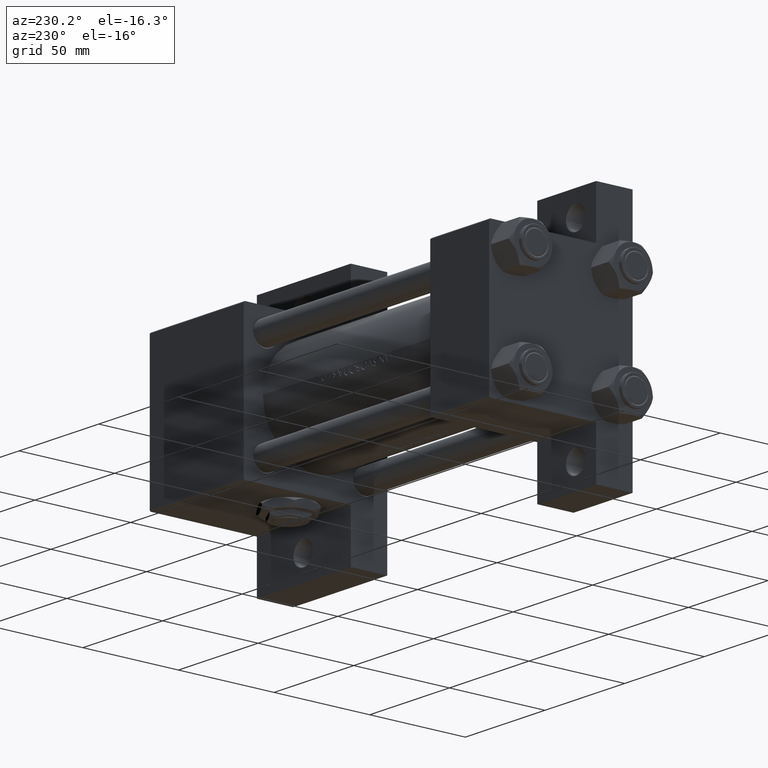
[diagram: clean part render]
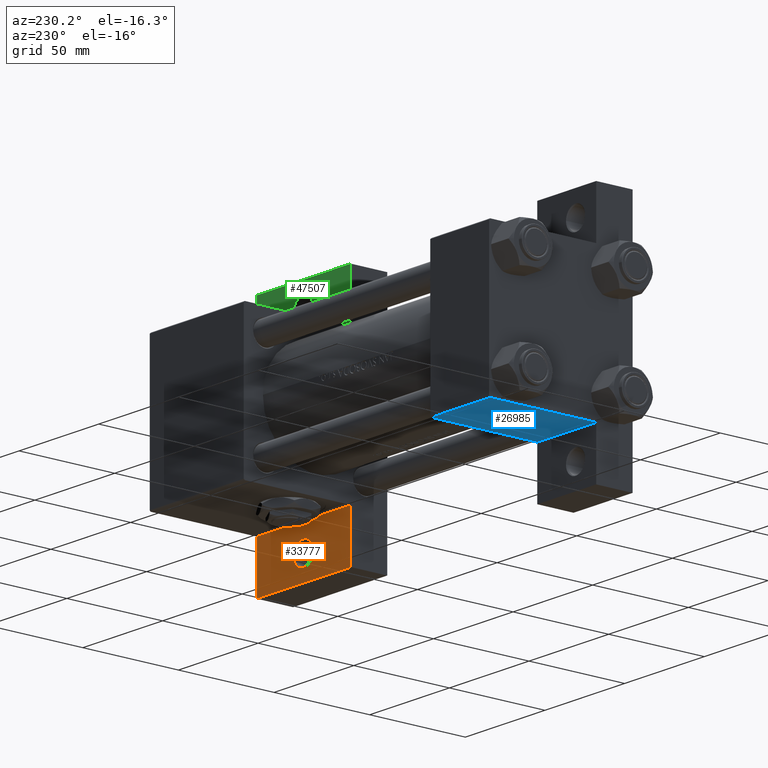
[diagram: same view with three faces highlighted in distinct colors, each labeled with its STEP entity id]
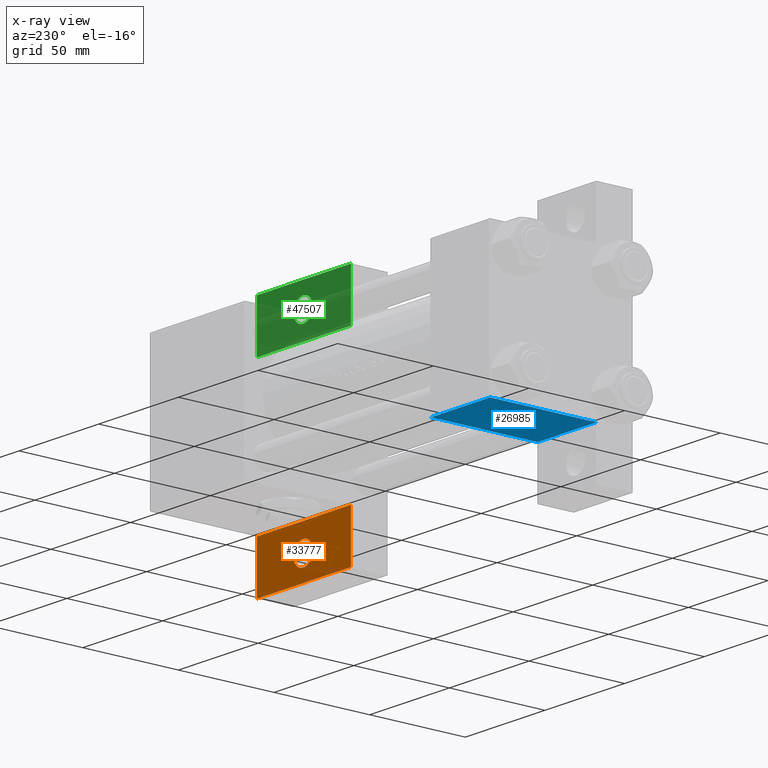
[diagram: x-ray of the same camera — body ghosted, the three highlighted faces saturated]
A machine part, auxiliary view with three faces highlighted in distinct colors.
The next image is the same camera in x-ray (body ghosted, the three faces saturated) — at least one of them is partly hidden behind the body in this view.
Their STEP definitions:

[orange] entity #33777 — the highlighted planar face has unit normal (0, 1, 0).
#683 = VERTEX_POINT ( 'NONE', #47543 ) ;
#1247 = CARTESIAN_POINT ( 'NONE',  ( 184.0000000000000000, 50.99999999999999289, -18.50000000000000000 ) ) ;
#1865 = DIRECTION ( 'NONE',  ( 1.000000000000000000, 0.000000000000000000, -0.000000000000000000 ) ) ;
#5472 = LINE ( 'NONE', #31642, #25503 ) ;
#5532 = VERTEX_POINT ( 'NONE', #26657 ) ;
#5747 = ORIENTED_EDGE ( 'NONE', *, *, #15834, .F. ) ;
#5835 = FACE_OUTER_BOUND ( 'NONE', #25878, .T. ) ;
#7335 = AXIS2_PLACEMENT_3D ( 'NONE', #1247, #35631, #30719 ) ;
#8178 = CARTESIAN_POINT ( 'NONE',  ( 154.0000000000000000, 37.50000000000000000, -18.50000000000000000 ) ) ;
#8716 = VERTEX_POINT ( 'NONE', #9102 ) ;
#8746 = CARTESIAN_POINT ( 'NONE',  ( 189.9995000000000118, 50.99999999999999289, -18.50000000000000000 ) ) ;
#8757 = VECTOR ( 'NONE', #23375, 1000.000000000000000 ) ;
#8765 = ORIENTED_EDGE ( 'NONE', *, *, #30048, .F. ) ;
#9102 = CARTESIAN_POINT ( 'NONE',  ( 178.0004999999999882, 50.99999999999999289, -18.50000000000000000 ) ) ;
#9388 = LINE ( 'NONE', #24842, #28559 ) ;
#9786 = CARTESIAN_POINT ( 'NONE',  ( 184.0000000000000000, 50.99999999999999289, -18.50000000000000000 ) ) ;
#12745 = EDGE_CURVE ( 'NONE', #43126, #39488, #9388, .T. ) ;
#14112 = EDGE_LOOP ( 'NONE', ( #32629, #30417 ) ) ;
#15834 = EDGE_CURVE ( 'NONE', #683, #43126, #24494, .T. ) ;
#16868 = AXIS2_PLACEMENT_3D ( 'NONE', #24035, #20281, #1865 ) ;
#17287 = PLANE ( 'NONE',  #16868 ) ;
#18977 = ORIENTED_EDGE ( 'NONE', *, *, #12745, .F. ) ;
#20281 = DIRECTION ( 'NONE',  ( 0.000000000000000000, 0.000000000000000000, 1.000000000000000000 ) ) ;
#20852 = DIRECTION ( 'NONE',  ( 1.000000000000000000, 4.704334850106593822E-16, 0.000000000000000000 ) ) ;
#22854 = EDGE_CURVE ( 'NONE', #8716, #25588, #46818, .T. ) ;
#23375 = DIRECTION ( 'NONE',  ( -1.000000000000000000, 3.528251137579945613E-16, -0.000000000000000000 ) ) ;
#24035 = CARTESIAN_POINT ( 'NONE',  ( 0.000000000000000000, 0.000000000000000000, -18.50000000000000000 ) ) ;
#24409 = DIRECTION ( 'NONE',  ( -1.067522139062649685E-15, -1.000000000000000000, 0.000000000000000000 ) ) ;
#24494 = LINE ( 'NONE', #28472, #35054 ) ;
#24563 = AXIS2_PLACEMENT_3D ( 'NONE', #9786, #44903, #40194 ) ;
#24774 = FACE_BOUND ( 'NONE', #14112, .T. ) ;
#24842 = CARTESIAN_POINT ( 'NONE',  ( 154.0000000000000284, 63.49999999999997158, -18.50000000000000000 ) ) ;
#25503 = VECTOR ( 'NONE', #24409, 1000.000000000000000 ) ;
#25588 = VERTEX_POINT ( 'NONE', #8746 ) ;
#25878 = EDGE_LOOP ( 'NONE', ( #5747, #8765, #37359, #18977 ) ) ;
#26657 = CARTESIAN_POINT ( 'NONE',  ( 213.0000000000000284, 37.49999999999997868, -18.50000000000000000 ) ) ;
#27155 = CARTESIAN_POINT ( 'NONE',  ( 213.0000000000000568, 63.50000000000000000, -18.50000000000000000 ) ) ;
#28472 = CARTESIAN_POINT ( 'NONE',  ( 154.0000000000000284, 63.49999999999997158, -18.50000000000000000 ) ) ;
#28559 = VECTOR ( 'NONE', #20852, 1000.000000000000000 ) ;
#30048 = EDGE_CURVE ( 'NONE', #5532, #683, #38590, .T. ) ;
#30417 = ORIENTED_EDGE ( 'NONE', *, *, #22854, .T. ) ;
#30719 = DIRECTION ( 'NONE',  ( 1.000000000000000000, 0.000000000000000000, 0.000000000000000000 ) ) ;
#31642 = CARTESIAN_POINT ( 'NONE',  ( 213.0000000000000568, 63.50000000000000000, -18.50000000000000000 ) ) ;
#32054 = CARTESIAN_POINT ( 'NONE',  ( 154.0000000000000284, 63.49999999999997158, -18.50000000000000000 ) ) ;
#32629 = ORIENTED_EDGE ( 'NONE', *, *, #33966, .T. ) ;
#33777 = ADVANCED_FACE ( 'NONE', ( #24774, #5835 ), #17287, .T. ) ;
#33966 = EDGE_CURVE ( 'NONE', #25588, #8716, #34385, .T. ) ;
#34385 = CIRCLE ( 'NONE', #7335, 5.999500000000018929 ) ;
#35054 = VECTOR ( 'NONE', #35476, 1000.000000000000000 ) ;
#35476 = DIRECTION ( 'NONE',  ( 1.067522139062651657E-15, 1.000000000000000000, -0.000000000000000000 ) ) ;
#35631 = DIRECTION ( 'NONE',  ( -0.000000000000000000, -0.000000000000000000, -1.000000000000000000 ) ) ;
#37359 = ORIENTED_EDGE ( 'NONE', *, *, #48855, .F. ) ;
#38590 = LINE ( 'NONE', #8178, #8757 ) ;
#39488 = VERTEX_POINT ( 'NONE', #27155 ) ;
#40194 = DIRECTION ( 'NONE',  ( 1.000000000000000000, 0.000000000000000000, 0.000000000000000000 ) ) ;
#43126 = VERTEX_POINT ( 'NONE', #32054 ) ;
#44903 = DIRECTION ( 'NONE',  ( -0.000000000000000000, -0.000000000000000000, -1.000000000000000000 ) ) ;
#46818 = CIRCLE ( 'NONE', #24563, 5.999500000000018929 ) ;
#47543 = CARTESIAN_POINT ( 'NONE',  ( 154.0000000000000000, 37.50000000000000000, -18.50000000000000355 ) ) ;
#48855 = EDGE_CURVE ( 'NONE', #39488, #5532, #5472, .T. ) ;

[blue] entity #26985 — the highlighted planar face has unit normal (0, 0, -1).
#376 = DIRECTION ( 'NONE',  ( 1.000000000000000000, 0.000000000000000000, 0.000000000000000000 ) ) ;
#2338 = CARTESIAN_POINT ( 'NONE',  ( 37.00000000000000711, 37.50000000000000711, -18.50000000000000355 ) ) ;
#3176 = VERTEX_POINT ( 'NONE', #46944 ) ;
#4706 = VECTOR ( 'NONE', #39645, 1000.000000000000000 ) ;
#4767 = CARTESIAN_POINT ( 'NONE',  ( 8.470280871287256020E-15, 37.50000000000002842, -18.49999999999999645 ) ) ;
#5239 = VERTEX_POINT ( 'NONE', #2338 ) ;
#6754 = ORIENTED_EDGE ( 'NONE', *, *, #36892, .F. ) ;
#7089 = AXIS2_PLACEMENT_3D ( 'NONE', #18836, #49247, #11378 ) ;
#7459 = VERTEX_POINT ( 'NONE', #14412 ) ;
#7827 = CARTESIAN_POINT ( 'NONE',  ( 37.00000000000000000, 37.49999999999999289, 37.00000000000000000 ) ) ;
#11378 = DIRECTION ( 'NONE',  ( 0.000000000000000000, -0.000000000000000000, 1.000000000000000000 ) ) ;
#14412 = CARTESIAN_POINT ( 'NONE',  ( 0.000000000000000000, 37.49999999999999289, -18.49999999999999645 ) ) ;
#16596 = EDGE_CURVE ( 'NONE', #35121, #3176, #34745, .T. ) ;
#18836 = CARTESIAN_POINT ( 'NONE',  ( 37.00000000000000000, 37.49999999999999289, 37.50000000000000000 ) ) ;
#19957 = DIRECTION ( 'NONE',  ( 0.000000000000000000, 0.000000000000000000, -1.000000000000000000 ) ) ;
#22090 = VECTOR ( 'NONE', #19957, 1000.000000000000000 ) ;
#22589 = PLANE ( 'NONE',  #7089 ) ;
#23449 = CARTESIAN_POINT ( 'NONE',  ( 37.00000000000000000, 37.49999999999999289, 37.50000000000000000 ) ) ;
#24595 = DIRECTION ( 'NONE',  ( 0.000000000000000000, 0.000000000000000000, -1.000000000000000000 ) ) ;
#25068 = CARTESIAN_POINT ( 'NONE',  ( 0.000000000000000000, 37.49999999999999289, 37.50000000000000000 ) ) ;
#25406 = EDGE_CURVE ( 'NONE', #3176, #5239, #45876, .T. ) ;
#25791 = ORIENTED_EDGE ( 'NONE', *, *, #28400, .F. ) ;
#26327 = FACE_OUTER_BOUND ( 'NONE', #36146, .T. ) ;
#26985 = ADVANCED_FACE ( 'NONE', ( #26327 ), #22589, .T. ) ;
#28325 = LINE ( 'NONE', #25068, #43198 ) ;
#28400 = EDGE_CURVE ( 'NONE', #7459, #5239, #31672, .T. ) ;
#31672 = LINE ( 'NONE', #4767, #4706 ) ;
#31870 = VECTOR ( 'NONE', #376, 1000.000000000000000 ) ;
#34526 = CARTESIAN_POINT ( 'NONE',  ( 0.000000000000000000, 37.49999999999999289, 37.00000000000000000 ) ) ;
#34745 = LINE ( 'NONE', #7827, #31870 ) ;
#35121 = VERTEX_POINT ( 'NONE', #34526 ) ;
#35641 = ORIENTED_EDGE ( 'NONE', *, *, #16596, .T. ) ;
#36146 = EDGE_LOOP ( 'NONE', ( #25791, #6754, #35641, #44540 ) ) ;
#36892 = EDGE_CURVE ( 'NONE', #35121, #7459, #28325, .T. ) ;
#39645 = DIRECTION ( 'NONE',  ( 1.000000000000000000, -3.750753461571474945E-16, 0.000000000000000000 ) ) ;
#43198 = VECTOR ( 'NONE', #24595, 1000.000000000000000 ) ;
#44540 = ORIENTED_EDGE ( 'NONE', *, *, #25406, .T. ) ;
#45876 = LINE ( 'NONE', #23449, #22090 ) ;
#46944 = CARTESIAN_POINT ( 'NONE',  ( 37.00000000000000000, 37.49999999999999289, 37.00000000000000000 ) ) ;
#49247 = DIRECTION ( 'NONE',  ( -0.000000000000000000, 1.000000000000000000, 0.000000000000000000 ) ) ;

[green] entity #47507 — the highlighted planar face has unit normal (0, -1, 0).
#279 = CARTESIAN_POINT ( 'NONE',  ( 213.0000000000000284, -63.50000000000002842, -18.50000000000000000 ) ) ;
#1879 = CARTESIAN_POINT ( 'NONE',  ( 154.0000000000000000, -63.50000000000000000, -18.50000000000000000 ) ) ;
#2362 = LINE ( 'NONE', #1879, #11770 ) ;
#4910 = DIRECTION ( 'NONE',  ( -1.000000000000000000, 0.000000000000000000, -0.000000000000000000 ) ) ;
#4920 = EDGE_CURVE ( 'NONE', #32800, #42149, #28312, .T. ) ;
#5394 = DIRECTION ( 'NONE',  ( 0.000000000000000000, 0.000000000000000000, -1.000000000000000000 ) ) ;
#9373 = CARTESIAN_POINT ( 'NONE',  ( 154.0000000000000000, -37.50000000000000000, -18.50000000000000000 ) ) ;
#10022 = EDGE_CURVE ( 'NONE', #44038, #16891, #2362, .T. ) ;
#11423 = AXIS2_PLACEMENT_3D ( 'NONE', #45850, #22935, #12438 ) ;
#11770 = VECTOR ( 'NONE', #28521, 1000.000000000000000 ) ;
#12438 = DIRECTION ( 'NONE',  ( -1.000000000000000000, 0.000000000000000000, 0.000000000000000000 ) ) ;
#12908 = ORIENTED_EDGE ( 'NONE', *, *, #10022, .F. ) ;
#12945 = VECTOR ( 'NONE', #23178, 1000.000000000000000 ) ;
#15083 = VERTEX_POINT ( 'NONE', #26930 ) ;
#16891 = VERTEX_POINT ( 'NONE', #44651 ) ;
#19101 = AXIS2_PLACEMENT_3D ( 'NONE', #39540, #5394, #4910 ) ;
#19150 = ORIENTED_EDGE ( 'NONE', *, *, #4920, .F. ) ;
#19182 = LINE ( 'NONE', #279, #12945 ) ;
#19335 = DIRECTION ( 'NONE',  ( 0.000000000000000000, 1.000000000000000000, 0.000000000000000000 ) ) ;
#21074 = FACE_BOUND ( 'NONE', #34191, .T. ) ;
#22279 = AXIS2_PLACEMENT_3D ( 'NONE', #42097, #28826, #25568 ) ;
#22935 = DIRECTION ( 'NONE',  ( 0.000000000000000000, 0.000000000000000000, -1.000000000000000000 ) ) ;
#22993 = VECTOR ( 'NONE', #19335, 1000.000000000000000 ) ;
#23178 = DIRECTION ( 'NONE',  ( -0.000000000000000000, -1.000000000000000000, -0.000000000000000000 ) ) ;
#23848 = EDGE_CURVE ( 'NONE', #16891, #32800, #31058, .T. ) ;
#24336 = FACE_OUTER_BOUND ( 'NONE', #37801, .T. ) ;
#25416 = CARTESIAN_POINT ( 'NONE',  ( 154.0000000000000000, -37.50000000000000000, -18.50000000000000000 ) ) ;
#25568 = DIRECTION ( 'NONE',  ( -1.000000000000000000, 0.000000000000000000, 0.000000000000000000 ) ) ;
#25719 = VERTEX_POINT ( 'NONE', #28094 ) ;
#26930 = CARTESIAN_POINT ( 'NONE',  ( 189.9995000000000118, -51.00000000000000000, -18.50000000000000000 ) ) ;
#27545 = CARTESIAN_POINT ( 'NONE',  ( 154.0000000000000000, -63.50000000000000000, -18.50000000000000000 ) ) ;
#27826 = PLANE ( 'NONE',  #19101 ) ;
#28094 = CARTESIAN_POINT ( 'NONE',  ( 178.0004999999999882, -51.00000000000000000, -18.50000000000000000 ) ) ;
#28133 = CIRCLE ( 'NONE', #11423, 5.999500000000018929 ) ;
#28312 = LINE ( 'NONE', #9373, #46740 ) ;
#28387 = CARTESIAN_POINT ( 'NONE',  ( 213.0000000000000000, -37.50000000000000711, -18.50000000000000355 ) ) ;
#28521 = DIRECTION ( 'NONE',  ( -1.000000000000000000, 4.704334850106593822E-16, -0.000000000000000000 ) ) ;
#28673 = EDGE_CURVE ( 'NONE', #25719, #15083, #42160, .T. ) ;
#28826 = DIRECTION ( 'NONE',  ( 0.000000000000000000, 0.000000000000000000, -1.000000000000000000 ) ) ;
#29831 = ORIENTED_EDGE ( 'NONE', *, *, #42078, .T. ) ;
#30519 = ORIENTED_EDGE ( 'NONE', *, *, #36711, .F. ) ;
#31058 = LINE ( 'NONE', #27545, #22993 ) ;
#32800 = VERTEX_POINT ( 'NONE', #25416 ) ;
#34191 = EDGE_LOOP ( 'NONE', ( #29831, #47721 ) ) ;
#36711 = EDGE_CURVE ( 'NONE', #42149, #44038, #19182, .T. ) ;
#37801 = EDGE_LOOP ( 'NONE', ( #30519, #19150, #43143, #12908 ) ) ;
#38011 = CARTESIAN_POINT ( 'NONE',  ( 213.0000000000000284, -63.50000000000002842, -18.50000000000000000 ) ) ;
#39540 = CARTESIAN_POINT ( 'NONE',  ( 0.000000000000000000, 0.000000000000000000, -18.50000000000000000 ) ) ;
#42078 = EDGE_CURVE ( 'NONE', #15083, #25719, #28133, .T. ) ;
#42097 = CARTESIAN_POINT ( 'NONE',  ( 184.0000000000000000, -51.00000000000000000, -18.50000000000000000 ) ) ;
#42149 = VERTEX_POINT ( 'NONE', #28387 ) ;
#42160 = CIRCLE ( 'NONE', #22279, 5.999500000000018929 ) ;
#43143 = ORIENTED_EDGE ( 'NONE', *, *, #23848, .F. ) ;
#44038 = VERTEX_POINT ( 'NONE', #38011 ) ;
#44651 = CARTESIAN_POINT ( 'NONE',  ( 154.0000000000000000, -63.50000000000000000, -18.50000000000000000 ) ) ;
#45850 = CARTESIAN_POINT ( 'NONE',  ( 184.0000000000000000, -51.00000000000000000, -18.50000000000000000 ) ) ;
#46740 = VECTOR ( 'NONE', #47484, 1000.000000000000000 ) ;
#47484 = DIRECTION ( 'NONE',  ( 1.000000000000000000, -3.528251137579945613E-16, 0.000000000000000000 ) ) ;
#47507 = ADVANCED_FACE ( 'NONE', ( #21074, #24336 ), #27826, .F. ) ;
#47721 = ORIENTED_EDGE ( 'NONE', *, *, #28673, .T. ) ;